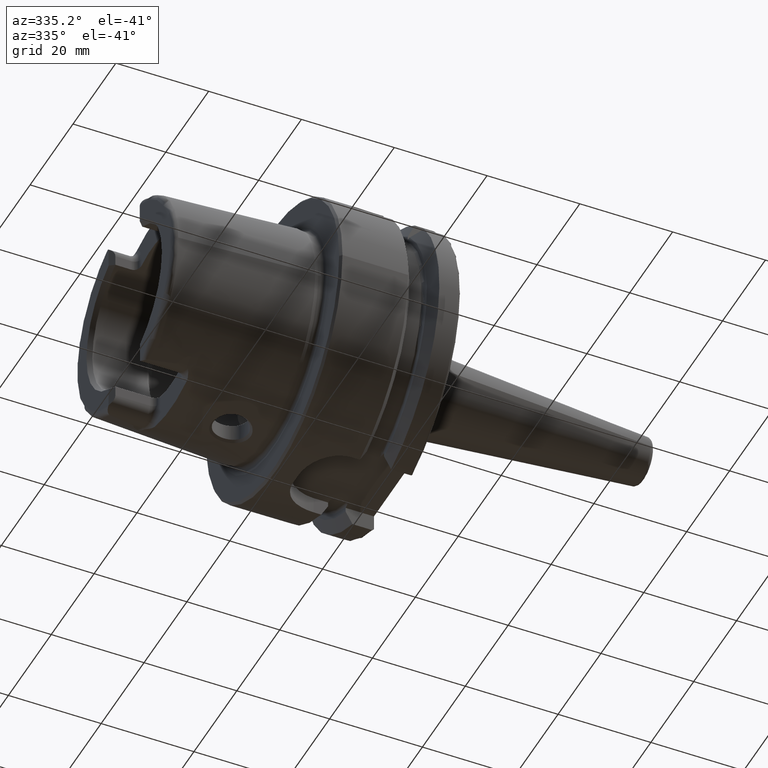
[diagram: clean part render]
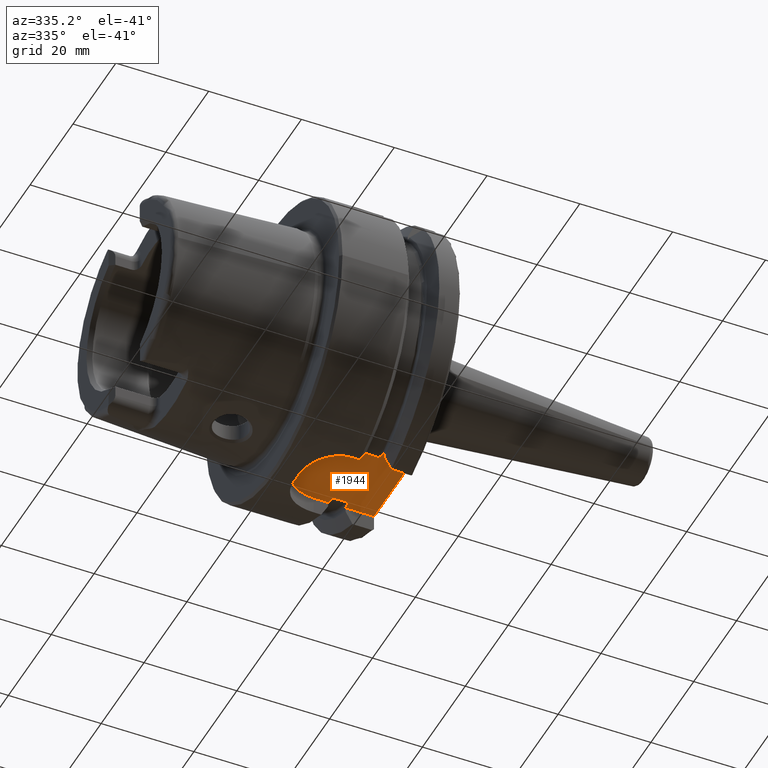
[diagram: same view with one face highlighted and labeled with its STEP entity id]
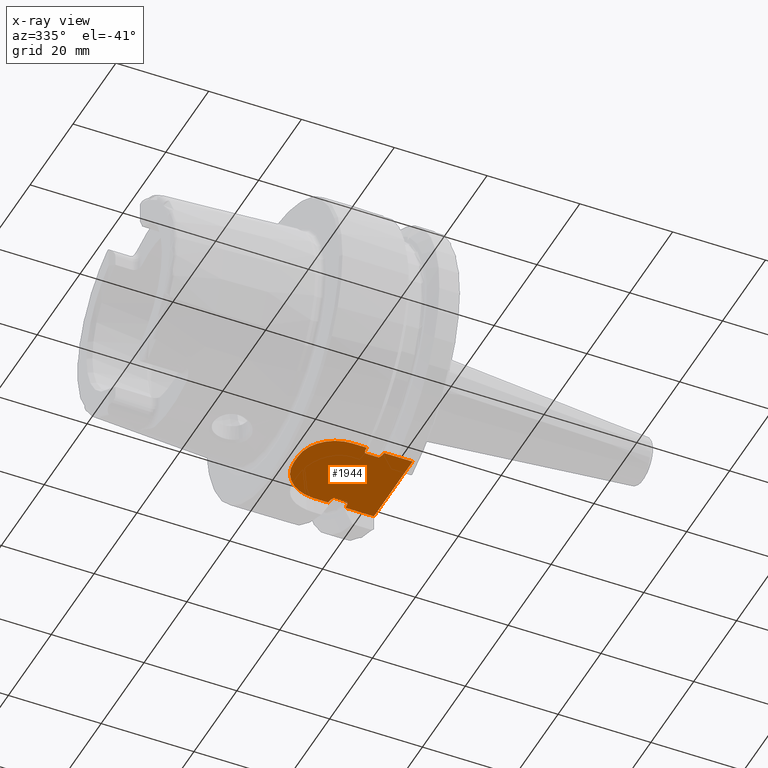
[diagram: x-ray of the same camera — body ghosted, the highlighted face saturated]
A machine part, auxiliary view. The second image highlights one B-rep face of the part: STEP entity #1944.
The next image is the same camera in x-ray: the body ghosted, the highlighted face saturated — about 0% of this face is hidden behind the body in this view.
In plain terms, the highlighted planar face has unit normal (0, 0, 1).
Its self-contained STEP definition (entity closure, byte-faithful):
#67=B_SPLINE_CURVE_WITH_KNOTS('',3,(#3857,#3858,#3859,#3860,#3861,#3862,
#3863,#3864,#3865,#3866),.UNSPECIFIED.,.F.,.F.,(4,2,2,2,4),(0.15835931245442,
0.289228035148658,0.316691561230897,0.323545183976989,0.328785692776271),
 .UNSPECIFIED.);
#68=B_SPLINE_CURVE_WITH_KNOTS('',3,(#3878,#3879,#3880,#3881,#3882,#3883,
#3884,#3885,#3886,#3887),.UNSPECIFIED.,.F.,.F.,(4,2,2,2,4),(0.328785692776271,
0.334026201575553,0.340879824321645,0.368343350403884,0.499212073098123),
 .UNSPECIFIED.);
#69=B_SPLINE_CURVE_WITH_KNOTS('',3,(#3890,#3891,#3892,#3893,#3894,#3895,
#3896,#3897,#3898,#3899),.UNSPECIFIED.,.F.,.F.,(4,2,2,2,4),(0.15835931245442,
0.289228035148658,0.316691561230897,0.323545183976988,0.32878569277627),
 .UNSPECIFIED.);
#70=B_SPLINE_CURVE_WITH_KNOTS('',3,(#3901,#3902,#3903,#3904,#3905,#3906,
#3907,#3908,#3909,#3910),.UNSPECIFIED.,.F.,.F.,(4,2,2,2,4),(0.32878569277627,
0.334026201575552,0.340879824321644,0.368343350403882,0.49921207309812),
 .UNSPECIFIED.);
#125=PLANE('',#2143);
#230=FACE_OUTER_BOUND('',#347,.T.);
#347=EDGE_LOOP('',(#1515,#1516,#1517,#1518,#1519,#1520,#1521,#1522,#1523,
#1524,#1525,#1526,#1527,#1528));
#427=LINE('',#2911,#532);
#479=LINE('',#3811,#584);
#481=LINE('',#3841,#586);
#484=LINE('',#3868,#589);
#485=LINE('',#3872,#590);
#486=LINE('',#3876,#591);
#487=LINE('',#3889,#592);
#488=LINE('',#3911,#593);
#532=VECTOR('',#2332,10.);
#584=VECTOR('',#2550,10.);
#586=VECTOR('',#2554,10.);
#589=VECTOR('',#2559,10.);
#590=VECTOR('',#2562,10.);
#591=VECTOR('',#2565,10.);
#592=VECTOR('',#2566,10.);
#593=VECTOR('',#2567,10.);
#687=CIRCLE('',#2144,8.);
#688=CIRCLE('',#2145,8.);
#766=VERTEX_POINT('',#2908);
#767=VERTEX_POINT('',#2910);
#874=VERTEX_POINT('',#3806);
#878=VERTEX_POINT('',#3840);
#882=VERTEX_POINT('',#3855);
#883=VERTEX_POINT('',#3856);
#884=VERTEX_POINT('',#3867);
#885=VERTEX_POINT('',#3869);
#886=VERTEX_POINT('',#3871);
#887=VERTEX_POINT('',#3873);
#888=VERTEX_POINT('',#3875);
#889=VERTEX_POINT('',#3877);
#890=VERTEX_POINT('',#3888);
#891=VERTEX_POINT('',#3900);
#971=EDGE_CURVE('',#766,#767,#427,.T.);
#1114=EDGE_CURVE('',#874,#766,#479,.T.);
#1119=EDGE_CURVE('',#767,#878,#481,.T.);
#1124=EDGE_CURVE('',#882,#883,#67,.T.);
#1125=EDGE_CURVE('',#884,#882,#484,.T.);
#1126=EDGE_CURVE('',#885,#884,#687,.T.);
#1127=EDGE_CURVE('',#886,#885,#485,.T.);
#1128=EDGE_CURVE('',#887,#886,#688,.T.);
#1129=EDGE_CURVE('',#888,#887,#486,.T.);
#1130=EDGE_CURVE('',#889,#888,#68,.T.);
#1131=EDGE_CURVE('',#890,#889,#487,.T.);
#1132=EDGE_CURVE('',#878,#890,#69,.T.);
#1133=EDGE_CURVE('',#891,#874,#70,.T.);
#1134=EDGE_CURVE('',#883,#891,#488,.T.);
#1515=ORIENTED_EDGE('',*,*,#1124,.F.);
#1516=ORIENTED_EDGE('',*,*,#1125,.F.);
#1517=ORIENTED_EDGE('',*,*,#1126,.F.);
#1518=ORIENTED_EDGE('',*,*,#1127,.F.);
#1519=ORIENTED_EDGE('',*,*,#1128,.F.);
#1520=ORIENTED_EDGE('',*,*,#1129,.F.);
#1521=ORIENTED_EDGE('',*,*,#1130,.F.);
#1522=ORIENTED_EDGE('',*,*,#1131,.F.);
#1523=ORIENTED_EDGE('',*,*,#1132,.F.);
#1524=ORIENTED_EDGE('',*,*,#1119,.F.);
#1525=ORIENTED_EDGE('',*,*,#971,.F.);
#1526=ORIENTED_EDGE('',*,*,#1114,.F.);
#1527=ORIENTED_EDGE('',*,*,#1133,.F.);
#1528=ORIENTED_EDGE('',*,*,#1134,.F.);
#1944=ADVANCED_FACE('',(#230),#125,.F.);
#2143=AXIS2_PLACEMENT_3D('',#3854,#2557,#2558);
#2144=AXIS2_PLACEMENT_3D('',#3870,#2560,#2561);
#2145=AXIS2_PLACEMENT_3D('',#3874,#2563,#2564);
#2332=DIRECTION('',(0.,1.,0.));
#2550=DIRECTION('',(1.,-2.56205313375036E-16,0.));
#2554=DIRECTION('',(-1.,2.56205313375036E-16,0.));
#2557=DIRECTION('center_axis',(0.,0.,1.));
#2558=DIRECTION('ref_axis',(1.,0.,0.));
#2559=DIRECTION('',(1.,-2.56205313375036E-16,0.));
#2560=DIRECTION('center_axis',(0.,0.,1.));
#2561=DIRECTION('ref_axis',(-1.,-2.42861286636753E-16,0.));
#2562=DIRECTION('',(0.,-1.,0.));
#2563=DIRECTION('center_axis',(0.,0.,1.));
#2564=DIRECTION('ref_axis',(0.,1.,0.));
#2565=DIRECTION('',(-1.,2.56205313375036E-16,0.));
#2566=DIRECTION('',(-1.,0.,0.));
#2567=DIRECTION('',(1.,0.,0.));
#2908=CARTESIAN_POINT('',(26.,-9.,-26.5));
#2910=CARTESIAN_POINT('',(26.,9.,-26.5));
#2911=CARTESIAN_POINT('',(26.,1.94289029309402E-15,-26.5));
#3806=CARTESIAN_POINT('',(19.8748205133158,-9.,-26.5));
#3811=CARTESIAN_POINT('',(13.,-9.,-26.5));
#3840=CARTESIAN_POINT('',(19.8748205133158,9.,-26.5));
#3841=CARTESIAN_POINT('',(26.,9.,-26.5));
#3854=CARTESIAN_POINT('Origin',(15.5,3.88578058618805E-15,-26.5));
#3855=CARTESIAN_POINT('',(16.1251794866842,-9.,-26.5));
#3856=CARTESIAN_POINT('',(16.625,-7.34846922834952,-26.5));
#3857=CARTESIAN_POINT('Ctrl Pts',(16.1251794866842,-9.,-26.5));
#3858=CARTESIAN_POINT('Ctrl Pts',(16.12898241235,-8.55877260788573,-26.5));
#3859=CARTESIAN_POINT('Ctrl Pts',(16.1819334034884,-8.04136347440828,-26.5));
#3860=CARTESIAN_POINT('Ctrl Pts',(16.3906456489289,-7.5566112023157,-26.5));
#3861=CARTESIAN_POINT('Ctrl Pts',(16.4411490019356,-7.4590543697872,-26.5));
#3862=CARTESIAN_POINT('Ctrl Pts',(16.5270295504762,-7.38349170057081,-26.5));
#3863=CARTESIAN_POINT('Ctrl Pts',(16.5496994821687,-7.36807649661538,-26.5));
#3864=CARTESIAN_POINT('Ctrl Pts',(16.587038394856,-7.35287762173868,-26.5));
#3865=CARTESIAN_POINT('Ctrl Pts',(16.6075316373357,-7.34846922834952,-26.5));
#3866=CARTESIAN_POINT('Ctrl Pts',(16.625,-7.34846922834952,-26.5));
#3867=CARTESIAN_POINT('',(13.,-9.,-26.5));
#3868=CARTESIAN_POINT('',(13.,-9.,-26.5));
#3869=CARTESIAN_POINT('',(5.,-0.999999999999999,-26.5));
#3870=CARTESIAN_POINT('Origin',(13.,-0.999999999999997,-26.5));
#3871=CARTESIAN_POINT('',(5.,1.,-26.5));
#3872=CARTESIAN_POINT('',(5.,1.,-26.5));
#3873=CARTESIAN_POINT('',(13.,9.00000000000001,-26.5));
#3874=CARTESIAN_POINT('Origin',(13.,1.,-26.5));
#3875=CARTESIAN_POINT('',(16.1251794866842,9.,-26.5));
#3876=CARTESIAN_POINT('',(26.,9.,-26.5));
#3877=CARTESIAN_POINT('',(16.625,7.34846922834952,-26.5));
#3878=CARTESIAN_POINT('Ctrl Pts',(16.625,7.34846922834952,-26.5));
#3879=CARTESIAN_POINT('Ctrl Pts',(16.6075316373357,7.34846922834952,-26.5));
#3880=CARTESIAN_POINT('Ctrl Pts',(16.587038394856,7.35287762173868,-26.5));
#3881=CARTESIAN_POINT('Ctrl Pts',(16.5496994821687,7.36807649661538,-26.5));
#3882=CARTESIAN_POINT('Ctrl Pts',(16.5270295504762,7.38349170057081,-26.5));
#3883=CARTESIAN_POINT('Ctrl Pts',(16.4411490019356,7.4590543697872,-26.5));
#3884=CARTESIAN_POINT('Ctrl Pts',(16.3906456489289,7.5566112023157,-26.5));
#3885=CARTESIAN_POINT('Ctrl Pts',(16.1819334034884,8.04136347440828,-26.5));
#3886=CARTESIAN_POINT('Ctrl Pts',(16.12898241235,8.55877260788573,-26.5));
#3887=CARTESIAN_POINT('Ctrl Pts',(16.1251794866842,9.,-26.5));
#3888=CARTESIAN_POINT('',(19.375,7.34846922834952,-26.5));
#3889=CARTESIAN_POINT('',(18.,7.34846922834952,-26.5));
#3890=CARTESIAN_POINT('Ctrl Pts',(19.8748205133158,9.,-26.5));
#3891=CARTESIAN_POINT('Ctrl Pts',(19.87101758765,8.55877260788573,-26.5));
#3892=CARTESIAN_POINT('Ctrl Pts',(19.8180665965116,8.04136347440828,-26.5));
#3893=CARTESIAN_POINT('Ctrl Pts',(19.6093543510711,7.5566112023157,-26.5));
#3894=CARTESIAN_POINT('Ctrl Pts',(19.5588509980644,7.45905436978719,-26.5));
#3895=CARTESIAN_POINT('Ctrl Pts',(19.4729704495238,7.38349170057082,-26.5));
#3896=CARTESIAN_POINT('Ctrl Pts',(19.4503005178313,7.3680764966154,-26.5));
#3897=CARTESIAN_POINT('Ctrl Pts',(19.412961605144,7.35287762173869,-26.5));
#3898=CARTESIAN_POINT('Ctrl Pts',(19.3924683626643,7.34846922834952,-26.5));
#3899=CARTESIAN_POINT('Ctrl Pts',(19.375,7.34846922834952,-26.5));
#3900=CARTESIAN_POINT('',(19.375,-7.34846922834952,-26.5));
#3901=CARTESIAN_POINT('Ctrl Pts',(19.375,-7.34846922834952,-26.5));
#3902=CARTESIAN_POINT('Ctrl Pts',(19.3924683626643,-7.34846922834952,-26.5));
#3903=CARTESIAN_POINT('Ctrl Pts',(19.412961605144,-7.35287762173869,-26.5));
#3904=CARTESIAN_POINT('Ctrl Pts',(19.4503005178313,-7.3680764966154,-26.5));
#3905=CARTESIAN_POINT('Ctrl Pts',(19.4729704495238,-7.38349170057082,-26.5));
#3906=CARTESIAN_POINT('Ctrl Pts',(19.5588509980644,-7.45905436978719,-26.5));
#3907=CARTESIAN_POINT('Ctrl Pts',(19.6093543510711,-7.5566112023157,-26.5));
#3908=CARTESIAN_POINT('Ctrl Pts',(19.8180665965116,-8.04136347440828,-26.5));
#3909=CARTESIAN_POINT('Ctrl Pts',(19.87101758765,-8.55877260788573,-26.5));
#3910=CARTESIAN_POINT('Ctrl Pts',(19.8748205133158,-9.,-26.5));
#3911=CARTESIAN_POINT('',(18.,-7.34846922834952,-26.5));